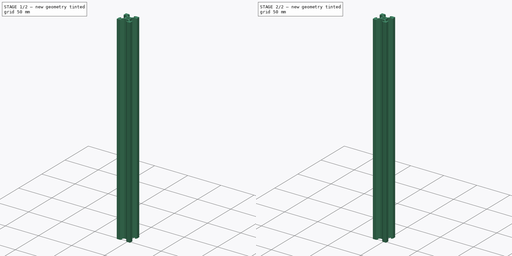
[diagram: build sequence overview — one tinted view per stage of 2, left to right]
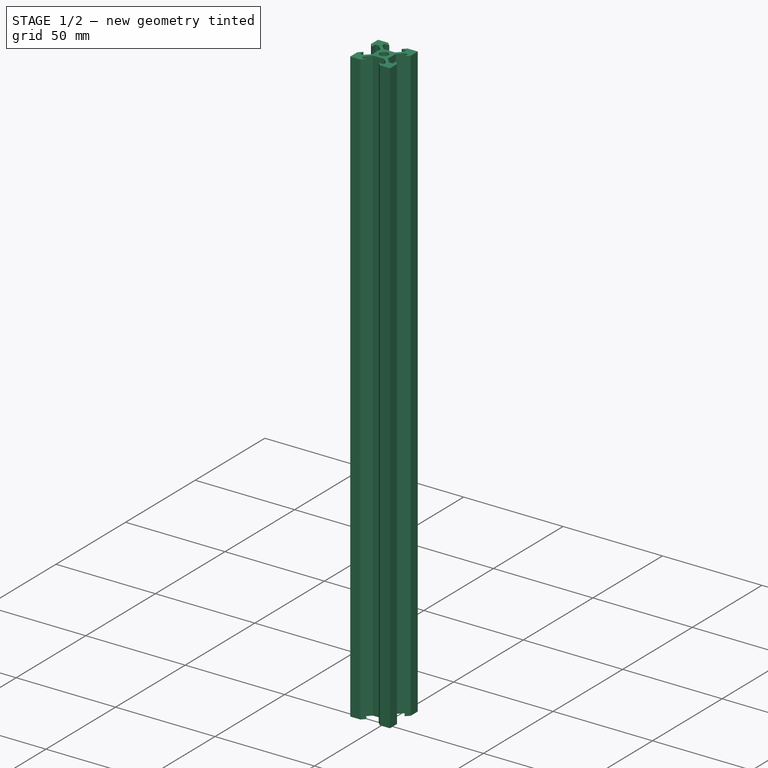
[diagram: stage 1 of 2 — iso view after this stage's code; geometry added in this stage tinted green]
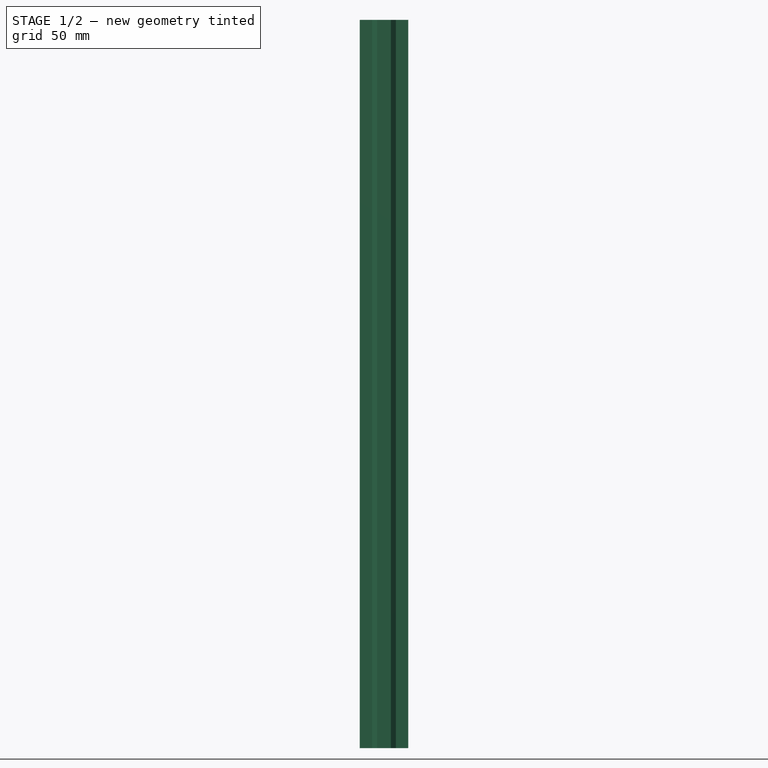
[diagram: stage 1 of 2 — front view after this stage's code; geometry added in this stage tinted green]
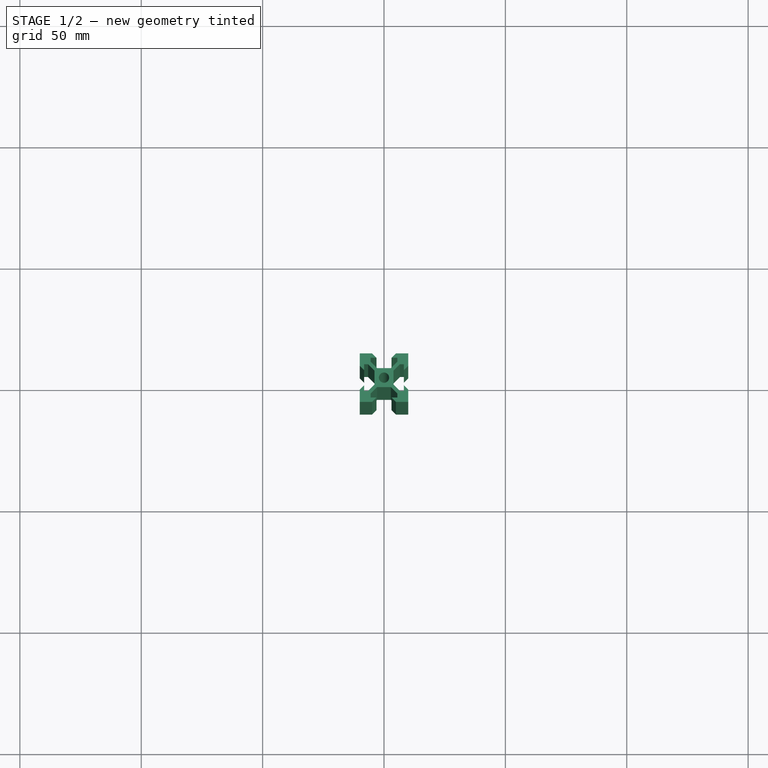
[diagram: stage 1 of 2 — top view after this stage's code; geometry added in this stage tinted green]
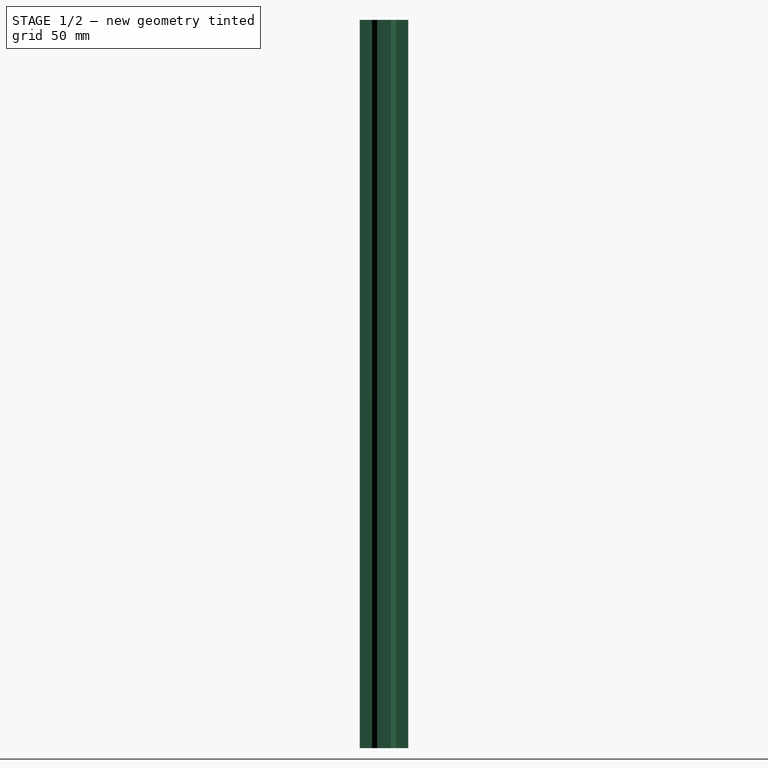
[diagram: stage 1 of 2 — right view after this stage's code; geometry added in this stage tinted green]
FCSTD DOCUMENT  (FreeCAD 1.0R39109 (Git))
Label: 2020_v_extrusion
License: All rights reserved
LicenseURL: https://en.wikipedia.org/wiki/All_rights_reserved
objects: Sketcher::SketchObject×1, App::FeaturePython×1, PartDesign::Pad×1, PartDesign::Fillet×1, PartDesign::Body×1
note: 9 computed .brp shape members not serialized (recipe doc carries the construction recipe); baked Part::Feature solids carry a one-line shape summary decoded from their .brp

FEATURE [Sketcher::SketchObject] Sketch
  ArcFitTolerance = 1e-06
  AttachmentSupport = -> [XY_Plane]
  FullyConstrained = true
  MakeInternals = false
  MapMode = 5
  sketch-geometry (65):
    g0: LineSegment [constr] StartX=3.90066 StartY=-3.90066 StartZ=0 EndX=3.90066 EndY=3.90066 EndZ=0
    g1: LineSegment [constr] StartX=3.90066 StartY=3.90066 StartZ=0 EndX=-3.90066 EndY=3.90066 EndZ=0
    g2: LineSegment [constr] StartX=-3.90066 StartY=3.90066 StartZ=0 EndX=-3.90066 EndY=-3.90066 EndZ=0
    g3: LineSegment [constr] StartX=-3.90066 StartY=-3.90066 StartZ=0 EndX=3.90066 EndY=-3.90066 EndZ=0
    g4: GeomPoint [constr] X=0 Y=0 Z=0
    g5: LineSegment [constr] StartX=8.2 StartY=-8.2 StartZ=0 EndX=8.2 EndY=8.2 EndZ=0
    g6: LineSegment [constr] StartX=8.2 StartY=8.2 StartZ=0 EndX=-8.2 EndY=8.2 EndZ=0
    g7: LineSegment [constr] StartX=-8.2 StartY=8.2 StartZ=0 EndX=-8.2 EndY=-8.2 EndZ=0
    g8: GeomPoint [constr] X=0 Y=0 Z=0
    g9: LineSegment [constr] StartX=10 StartY=-10 StartZ=0 EndX=10 EndY=10 EndZ=0
    g10: LineSegment [constr] StartX=10 StartY=10 StartZ=0 EndX=-10 EndY=10 EndZ=0
    g11: LineSegment [constr] StartX=-10 StartY=10 StartZ=0 EndX=-10 EndY=-10 EndZ=0
    g12: LineSegment [constr] StartX=-10 StartY=-10 StartZ=0 EndX=10 EndY=-10 EndZ=0
    g13: GeomPoint [constr] X=0 Y=0 Z=0
    g14: LineSegment [constr] StartX=6.56 StartY=-6.56 StartZ=0 EndX=6.56 EndY=6.56 EndZ=0
    g15: LineSegment [constr] StartX=6.56 StartY=6.56 StartZ=0 EndX=-6.56 EndY=6.56 EndZ=0
    g16: LineSegment [constr] StartX=-6.56 StartY=6.56 StartZ=0 EndX=-6.56 EndY=-6.56 EndZ=0
    g17: LineSegment [constr] StartX=-6.56 StartY=-6.56 StartZ=0 EndX=6.56 EndY=-6.56 EndZ=0
    g18: GeomPoint [constr] X=0 Y=0 Z=0
    g19: Circle CenterX=0 CenterY=0 CenterZ=0 NormalX=0 NormalY=0 NormalZ=1 AngleXU=0 Radius=2.1
    g20: LineSegment StartX=-2.84 StartY=3.90066 StartZ=0 EndX=2.84 EndY=3.90066 EndZ=0
    g21: LineSegment StartX=3.90066 StartY=2.84 StartZ=0 EndX=3.90066 EndY=-2.84 EndZ=0
    g22: LineSegment StartX=2.84 StartY=-3.90066 StartZ=0 EndX=-2.84 EndY=-3.90066 EndZ=0
    g23: LineSegment StartX=-3.90066 StartY=-2.84 StartZ=0 EndX=-3.90066 EndY=2.84 EndZ=0
    g24: LineSegment [constr] StartX=-8.2 StartY=-8.2 StartZ=0 EndX=8.2 EndY=-8.2 EndZ=0
    g25: LineSegment StartX=-2.84 StartY=3.90066 StartZ=0 EndX=-5.49934 EndY=6.56 EndZ=0
    g26: LineSegment StartX=-5.49934 StartY=6.56 StartZ=0 EndX=-5.49934 EndY=8.2 EndZ=0
    g27: LineSegment StartX=-5.49934 StartY=8.2 StartZ=0 EndX=-3.1 EndY=8.2 EndZ=0
    g28: LineSegment StartX=-3.1 StartY=8.2 StartZ=0 EndX=-4.9 EndY=10 EndZ=0
    g29: LineSegment StartX=-4.9 StartY=10 StartZ=0 EndX=-10 EndY=10 EndZ=0
    g30: LineSegment StartX=-10 StartY=10 StartZ=0 EndX=-10 EndY=4.9 EndZ=0
    g31: LineSegment StartX=-10 StartY=4.9 StartZ=0 EndX=-8.2 EndY=3.1 EndZ=0
    g32: LineSegment StartX=-8.2 StartY=3.1 StartZ=0 EndX=-8.2 EndY=5.49934 EndZ=0
    g33: LineSegment StartX=-8.2 StartY=5.49934 StartZ=0 EndX=-6.56 EndY=5.49934 EndZ=0
    g34: LineSegment StartX=-6.56 StartY=5.49934 StartZ=0 EndX=-3.90066 EndY=2.84 EndZ=0
    g35: LineSegment StartX=-3.90066 StartY=-2.84 StartZ=0 EndX=-6.56 EndY=-5.49934 EndZ=0
    g36: LineSegment StartX=-6.56 StartY=-5.49934 StartZ=0 EndX=-8.2 EndY=-5.49934 EndZ=0
    g37: LineSegment StartX=-8.2 StartY=-5.49934 StartZ=0 EndX=-8.2 EndY=-3.1 EndZ=0
    g38: LineSegment StartX=-8.2 StartY=-3.1 StartZ=0 EndX=-10 EndY=-4.9 EndZ=0
    g39: LineSegment StartX=-10 StartY=-4.9 StartZ=0 EndX=-10 EndY=-10 EndZ=0
    g40: LineSegment StartX=-10 StartY=-10 StartZ=0 EndX=-4.9 EndY=-10 EndZ=0
    g41: LineSegment StartX=-4.9 StartY=-10 StartZ=0 EndX=-3.1 EndY=-8.2 EndZ=0
    g42: LineSegment StartX=-3.1 StartY=-8.2 StartZ=0 EndX=-5.49934 EndY=-8.2 EndZ=0
    g43: LineSegment StartX=-5.49934 StartY=-8.2 StartZ=0 EndX=-5.49934 EndY=-6.56 EndZ=0
    g44: LineSegment StartX=-5.49934 StartY=-6.56 StartZ=0 EndX=-2.84 EndY=-3.90066 EndZ=0
    g45: LineSegment StartX=2.84 StartY=-3.90066 StartZ=0 EndX=5.49934 EndY=-6.56 EndZ=0
    g46: LineSegment StartX=5.49934 StartY=-6.56 StartZ=0 EndX=5.49934 EndY=-8.2 EndZ=0
    g47: LineSegment StartX=5.49934 StartY=-8.2 StartZ=0 EndX=3.1 EndY=-8.2 EndZ=0
    g48: LineSegment StartX=3.1 StartY=-8.2 StartZ=0 EndX=4.9 EndY=-10 EndZ=0
    g49: LineSegment StartX=4.9 StartY=-10 StartZ=0 EndX=10 EndY=-10 EndZ=0
    g50: LineSegment StartX=10 StartY=-10 StartZ=0 EndX=10 EndY=-4.9 EndZ=0
    g51: LineSegment StartX=10 StartY=-4.9 StartZ=0 EndX=8.2 EndY=-3.1 EndZ=0
    g52: LineSegment StartX=8.2 StartY=-3.1 StartZ=0 EndX=8.2 EndY=-5.49934 EndZ=0
    g53: LineSegment StartX=8.2 StartY=-5.49934 StartZ=0 EndX=6.56 EndY=-5.49934 EndZ=0
    g54: LineSegment StartX=6.56 StartY=-5.49934 StartZ=0 EndX=3.90066 EndY=-2.84 EndZ=0
    g55: LineSegment StartX=2.84 StartY=3.90066 StartZ=0 EndX=5.49934 EndY=6.56 EndZ=0
    g56: LineSegment StartX=5.49934 StartY=6.56 StartZ=0 EndX=5.49934 EndY=8.2 EndZ=0
    g57: LineSegment StartX=5.49934 StartY=8.2 StartZ=0 EndX=3.1 EndY=8.2 EndZ=0
    g58: LineSegment StartX=3.1 StartY=8.2 StartZ=0 EndX=4.9 EndY=10 EndZ=0
    g59: LineSegment StartX=4.9 StartY=10 StartZ=0 EndX=10 EndY=10 EndZ=0
    g60: LineSegment StartX=10 StartY=10 StartZ=0 EndX=10 EndY=4.9 EndZ=0
    g61: LineSegment StartX=10 StartY=4.9 StartZ=0 EndX=8.2 EndY=3.1 EndZ=0
    g62: LineSegment StartX=8.2 StartY=3.1 StartZ=0 EndX=8.2 EndY=5.49934 EndZ=0
    g63: LineSegment StartX=8.2 StartY=5.49934 StartZ=0 EndX=6.56 EndY=5.49934 EndZ=0
    g64: LineSegment StartX=6.56 StartY=5.49934 StartZ=0 EndX=3.90066 EndY=2.84 EndZ=0
  constraints (174):
    c: Coincident(g0,g1)
    c: Coincident(g1,g2)
    c: Coincident(g2,g3)
    c: Coincident(g3,g0)
    c: Vertical(g0)
    c: Vertical(g2)
    c: Horizontal(g1)
    c: Horizontal(g3)
    c: Coincident(g4,g-1)
    c: Coincident(g5,g6)
    c: Coincident(g6,g7)
    c: Vertical(g5)
    c: Vertical(g7)
    c: Horizontal(g6)
    c: Coincident(g8,g4)
    c: Coincident(g9,g10)
    c: Coincident(g10,g11)
    c: Coincident(g11,g12)
    c: Coincident(g12,g9)
    c: Vertical(g9)
    c: Vertical(g11)
    c: Horizontal(g10)
    c: Horizontal(g12)
    c: Coincident(g13,g4)
    c: Coincident(g14,g15)
    c: Coincident(g15,g16)
    c: Coincident(g16,g17)
    c: Coincident(g17,g14)
    c: Vertical(g14)
    c: Vertical(g16)
    c: Horizontal(g15)
    c: Horizontal(g17)
    c: Coincident(g18,g4)
    c: Coincident(g19,g4)
    c: Coincident(g24,g7)
    c: Coincident(g24,g5)
    c: Horizontal(g24)
    c: Equal(g23,g20)
    c: Equal(g20,g21)
    c: Equal(g21,g22)
    c: Diameter(g19) = 4.2
    c: DistanceY(g21,g21) = 5.68
    c: Symmetric(g20,g20,g-2)
    c: Symmetric(g23,g23,g-1)
    c: Symmetric(g22,g22,g-2)
    c: Symmetric(g21,g21,g-1)
    c: Equal(g10,g9)
    c: Equal(g6,g5)
    c: Equal(g15,g14)
    c: Equal(g1,g0)
    c: Symmetric(g10,g9,g4)
    c: Symmetric(g6,g5,g4)
    c: Symmetric(g15,g14,g4)
    c: Symmetric(g1,g0,g4)
    c: DistanceY(g9,g9) = 20
    c: Distance(g5,g9) = 1.8
    c: Distance(g14,g5) = 1.64
    c: Coincident(g20,g25)
    c: PointOnObject(g25,g15)
    c: Coincident(g25,g26)
    c: PointOnObject(g26,g6)
    c: Coincident(g26,g27)
    c: PointOnObject(g27,g6)
    c: Coincident(g27,g28)
    c: PointOnObject(g28,g10)
    c: Coincident(g28,g29)
    c: Coincident(g29,g10)
    c: Coincident(g29,g30)
    c: PointOnObject(g30,g11)
    c: Coincident(g30,g31)
    c: PointOnObject(g31,g7)
    c: Coincident(g31,g32)
    c: PointOnObject(g32,g7)
    c: Coincident(g32,g33)
    c: PointOnObject(g33,g16)
    c: Coincident(g33,g34)
    c: Coincident(g34,g23)
    c: Coincident(g23,g35)
    c: PointOnObject(g35,g16)
    c: Coincident(g35,g36)
    c: PointOnObject(g36,g7)
    c: Coincident(g36,g37)
    c: PointOnObject(g37,g7)
    c: Coincident(g37,g38)
    c: PointOnObject(g38,g11)
    c: Coincident(g38,g39)
    c: Coincident(g39,g11)
    c: Coincident(g39,g40)
    c: PointOnObject(g40,g12)
    c: Coincident(g40,g41)
    c: PointOnObject(g41,g24)
    c: Coincident(g41,g42)
    c: PointOnObject(g42,g24)
    c: Coincident(g42,g43)
    c: PointOnObject(g43,g17)
    c: Vertical(g43)
    c: Coincident(g43,g44)
    c: Coincident(g44,g22)
    c: Coincident(g22,g45)
    c: PointOnObject(g45,g17)
    c: Coincident(g45,g46)
    c: PointOnObject(g46,g24)
    c: Coincident(g46,g47)
    c: PointOnObject(g47,g24)
    c: Coincident(g47,g48)
    c: PointOnObject(g48,g12)
    c: Coincident(g48,g49)
    c: Coincident(g49,g9)
    c: Coincident(g49,g50)
    c: PointOnObject(g50,g9)
    c: Coincident(g50,g51)
    c: PointOnObject(g51,g5)
    c: Coincident(g51,g52)
    c: PointOnObject(g52,g5)
    c: Coincident(g52,g53)
    c: PointOnObject(g53,g14)
    c: Horizontal(g53)
    c: Coincident(g53,g54)
    c: Coincident(g54,g21)
    c: Coincident(g20,g55)
    c: PointOnObject(g55,g15)
    c: Coincident(g55,g56)
    c: PointOnObject(g56,g6)
    c: Coincident(g56,g57)
    c: PointOnObject(g57,g6)
    c: Coincident(g57,g58)
    c: PointOnObject(g58,g10)
    c: Coincident(g58,g59)
    c: Coincident(g59,g9)
    c: Coincident(g59,g60)
    c: PointOnObject(g60,g9)
    c: Coincident(g60,g61)
    c: PointOnObject(g61,g5)
    c: Coincident(g61,g62)
    c: PointOnObject(g62,g5)
    c: Coincident(g62,g63)
    c: PointOnObject(g63,g14)
    c: Horizontal(g63)
    c: Coincident(g63,g64)
    c: Coincident(g64,g21)
    c: Horizontal(g33)
    c: Vertical(g26)
    c: Horizontal(g36)
    c: Vertical(g46)
    c: Vertical(g56)
    c: Parallel(g34,g25)
    c: PointOnObject(g23,g2)
    c: PointOnObject(g20,g1)
    c: PointOnObject(g21,g0)
    c: PointOnObject(g22,g3)
    c: Parallel(g55,g64)
    c: Parallel(g44,g35)
    c: Parallel(g45,g54)
    c: Parallel(g51,g48)
    c: Parallel(g61,g58)
    c: Parallel(g28,g31)
    c: Parallel(g38,g41)
    c: Distance(g64,g55) = 1.5
    c: Angle(g58,g28) = 1.5708
    c: Angle(g31,g38) = 1.5708
    c: Angle(g41,g48) = 1.5708
    c: Distance(g61,g51) = 6.2
    c: Equal(g52,g62)
    c: Equal(g62,g57)
    c: Equal(g57,g27)
    c: Equal(g27,g32)
    c: Equal(g32,g37)
    c: Equal(g37,g42)
    c: Equal(g42,g47)
    c: Equal(g60,g59)
    c: Equal(g60,g50)
    c: Equal(g49,g40)
    c: Equal(g39,g30)
    c: Equal(g35,g44)
FEATURE [App::FeaturePython] dd  # WARN: FeaturePython — macro-defined, semantics opaque (R4)
  Distance = 0
  DynamicData = Created with DynamicData (v2.74) workbench. | This is a simple container object built | for holding custom properties.
  Length = 300
FEATURE [PartDesign::Pad] Pad
  Direction = (0,0,1)
  Length = 300
  Length2 = 10
  Profile = -> Sketch
  ReferenceAxis = -> Sketch [N_Axis]
  Refine = true
  Suppressed = false
  Type = 0
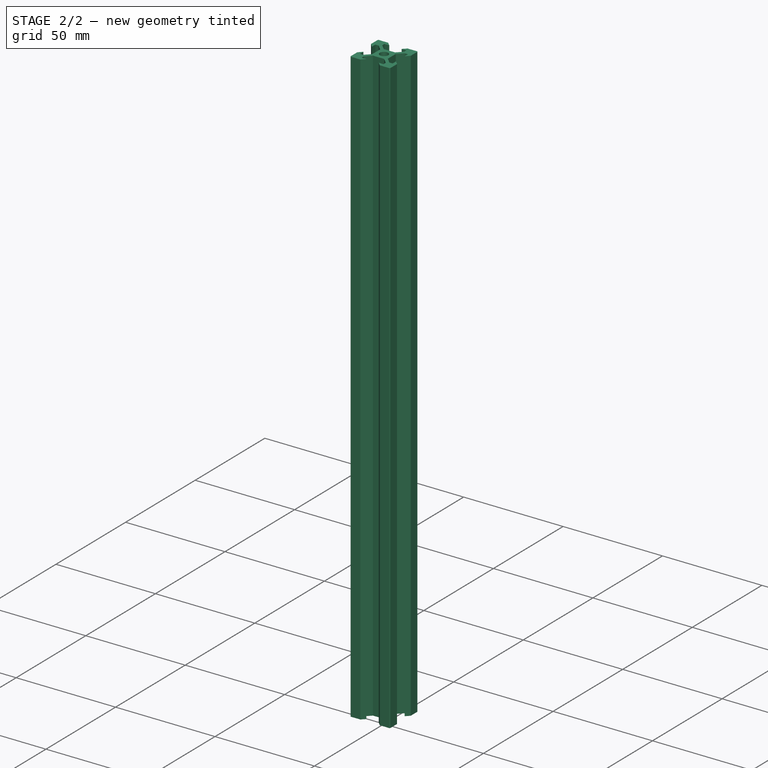
[diagram: stage 2 of 2 — iso view after this stage's code; geometry added in this stage tinted green]
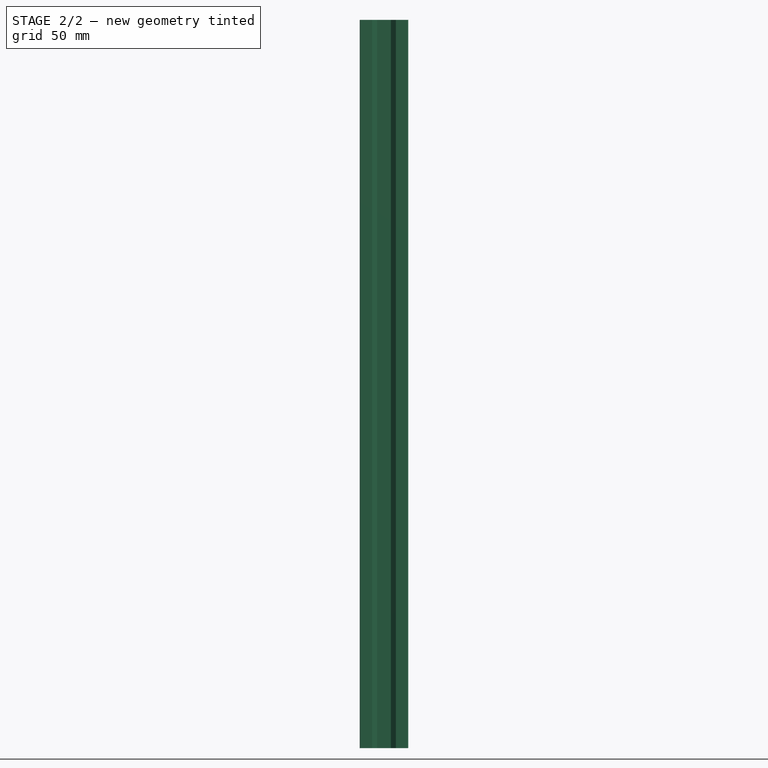
[diagram: stage 2 of 2 — front view after this stage's code; geometry added in this stage tinted green]
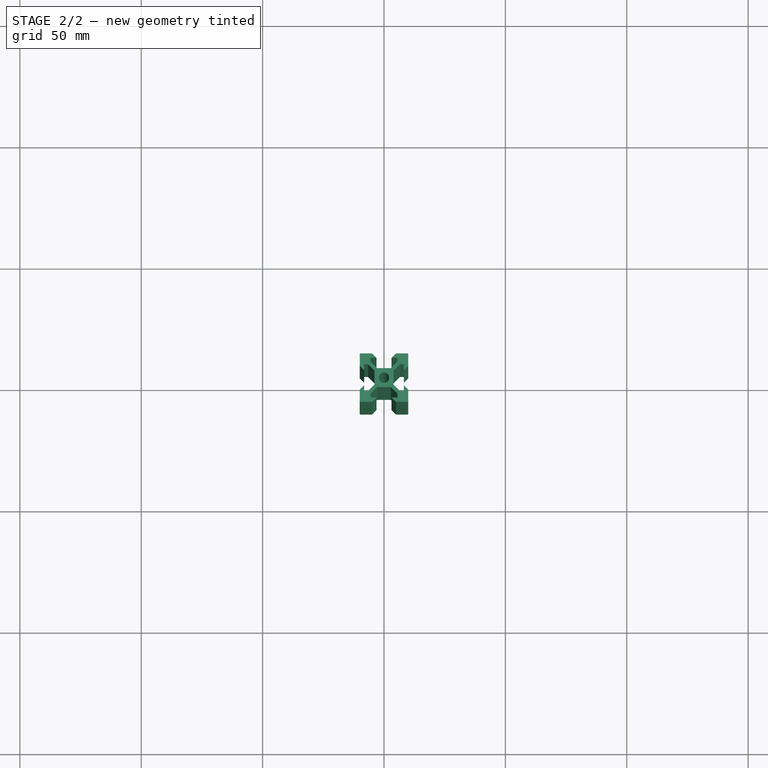
[diagram: stage 2 of 2 — top view after this stage's code; geometry added in this stage tinted green]
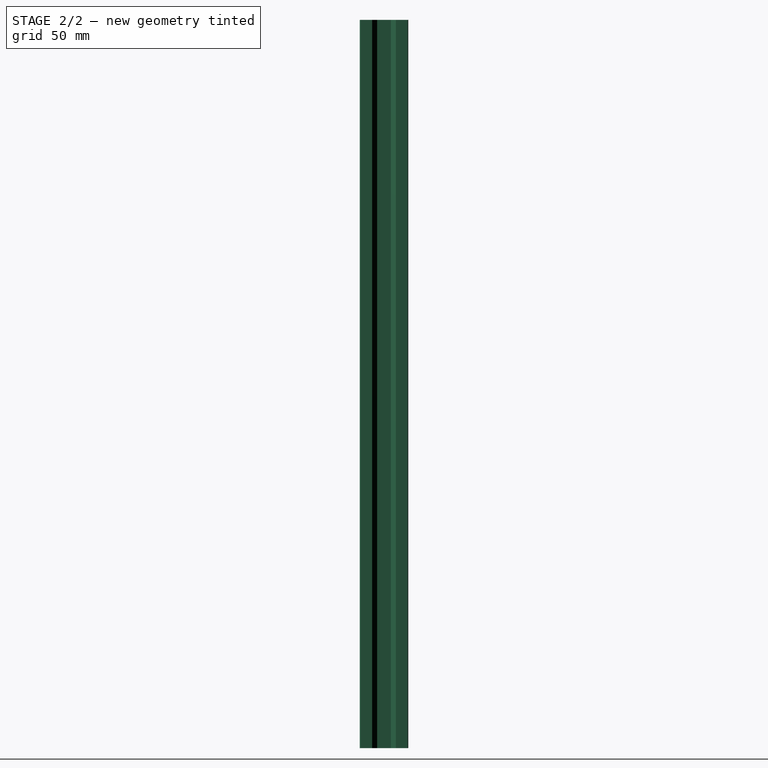
[diagram: stage 2 of 2 — right view after this stage's code; geometry added in this stage tinted green]
FEATURE [PartDesign::Fillet] Fillet
  Base = -> Pad [Edge20,Edge119,Edge53,Edge86]
  BaseFeature = -> Pad
  Radius = 0.4
  Refine = true
  SupportTransform = false
  Suppressed = false
  UseAllEdges = false
FEATURE [PartDesign::Body] Body
  AllowCompound = false
  Group = -> [Sketch,Pad,Fillet]
  Origin = -> Origin
  Tip = -> Fillet
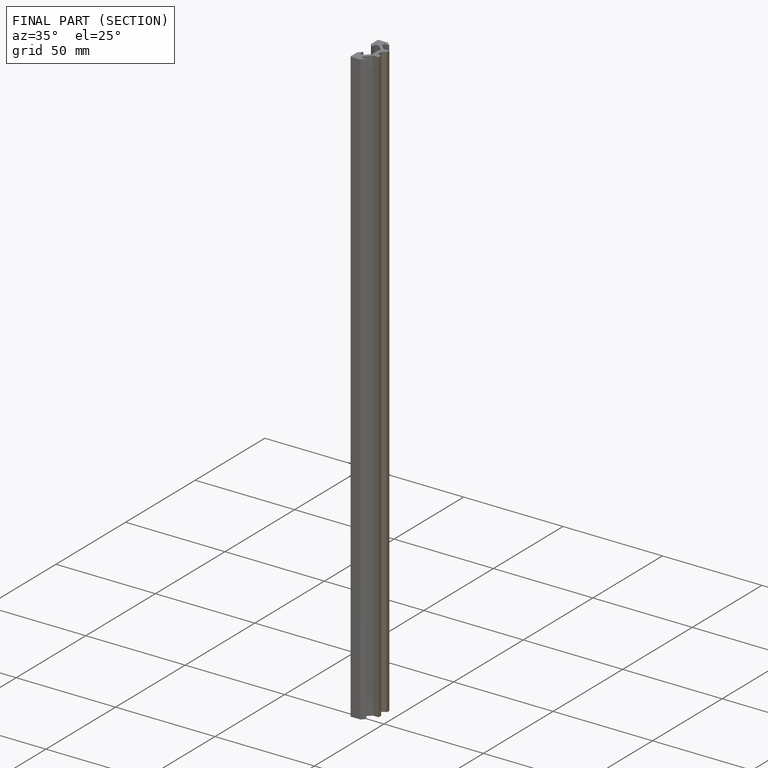
[diagram: finished part — half-section view (interior)]
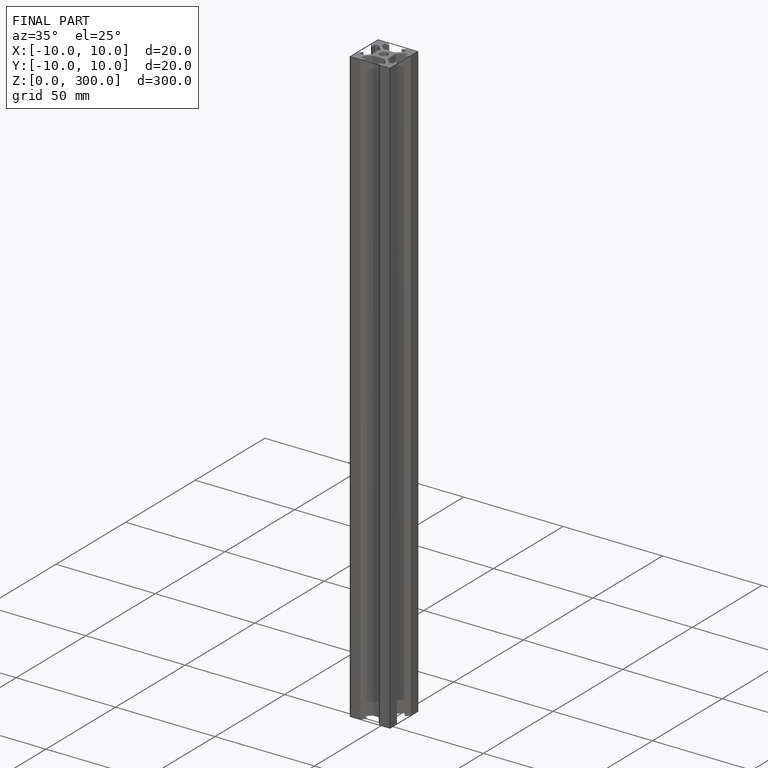
[diagram: finished part — iso view with bounding-box wireframe]
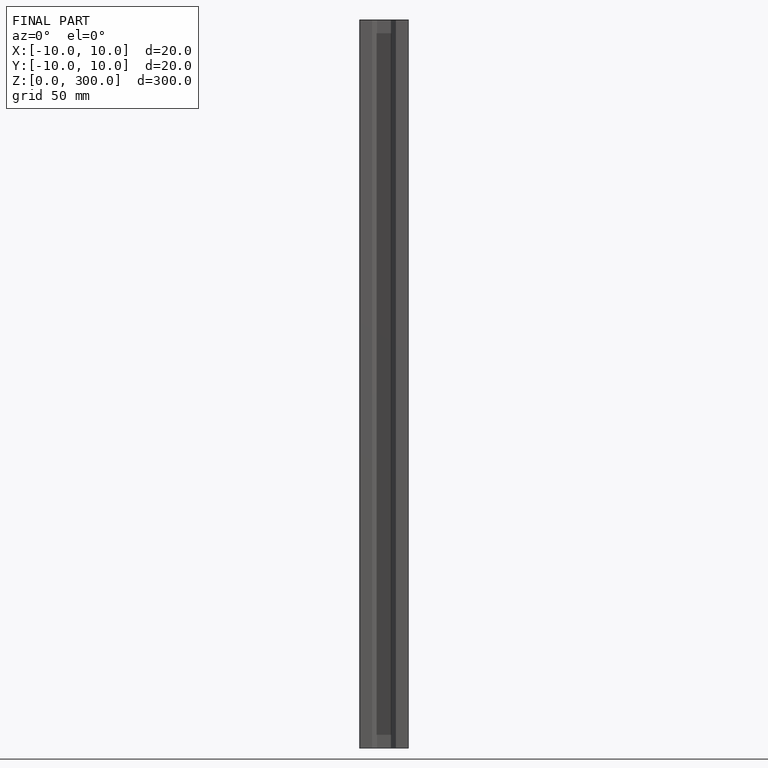
[diagram: finished part — front view with bounding-box wireframe]
